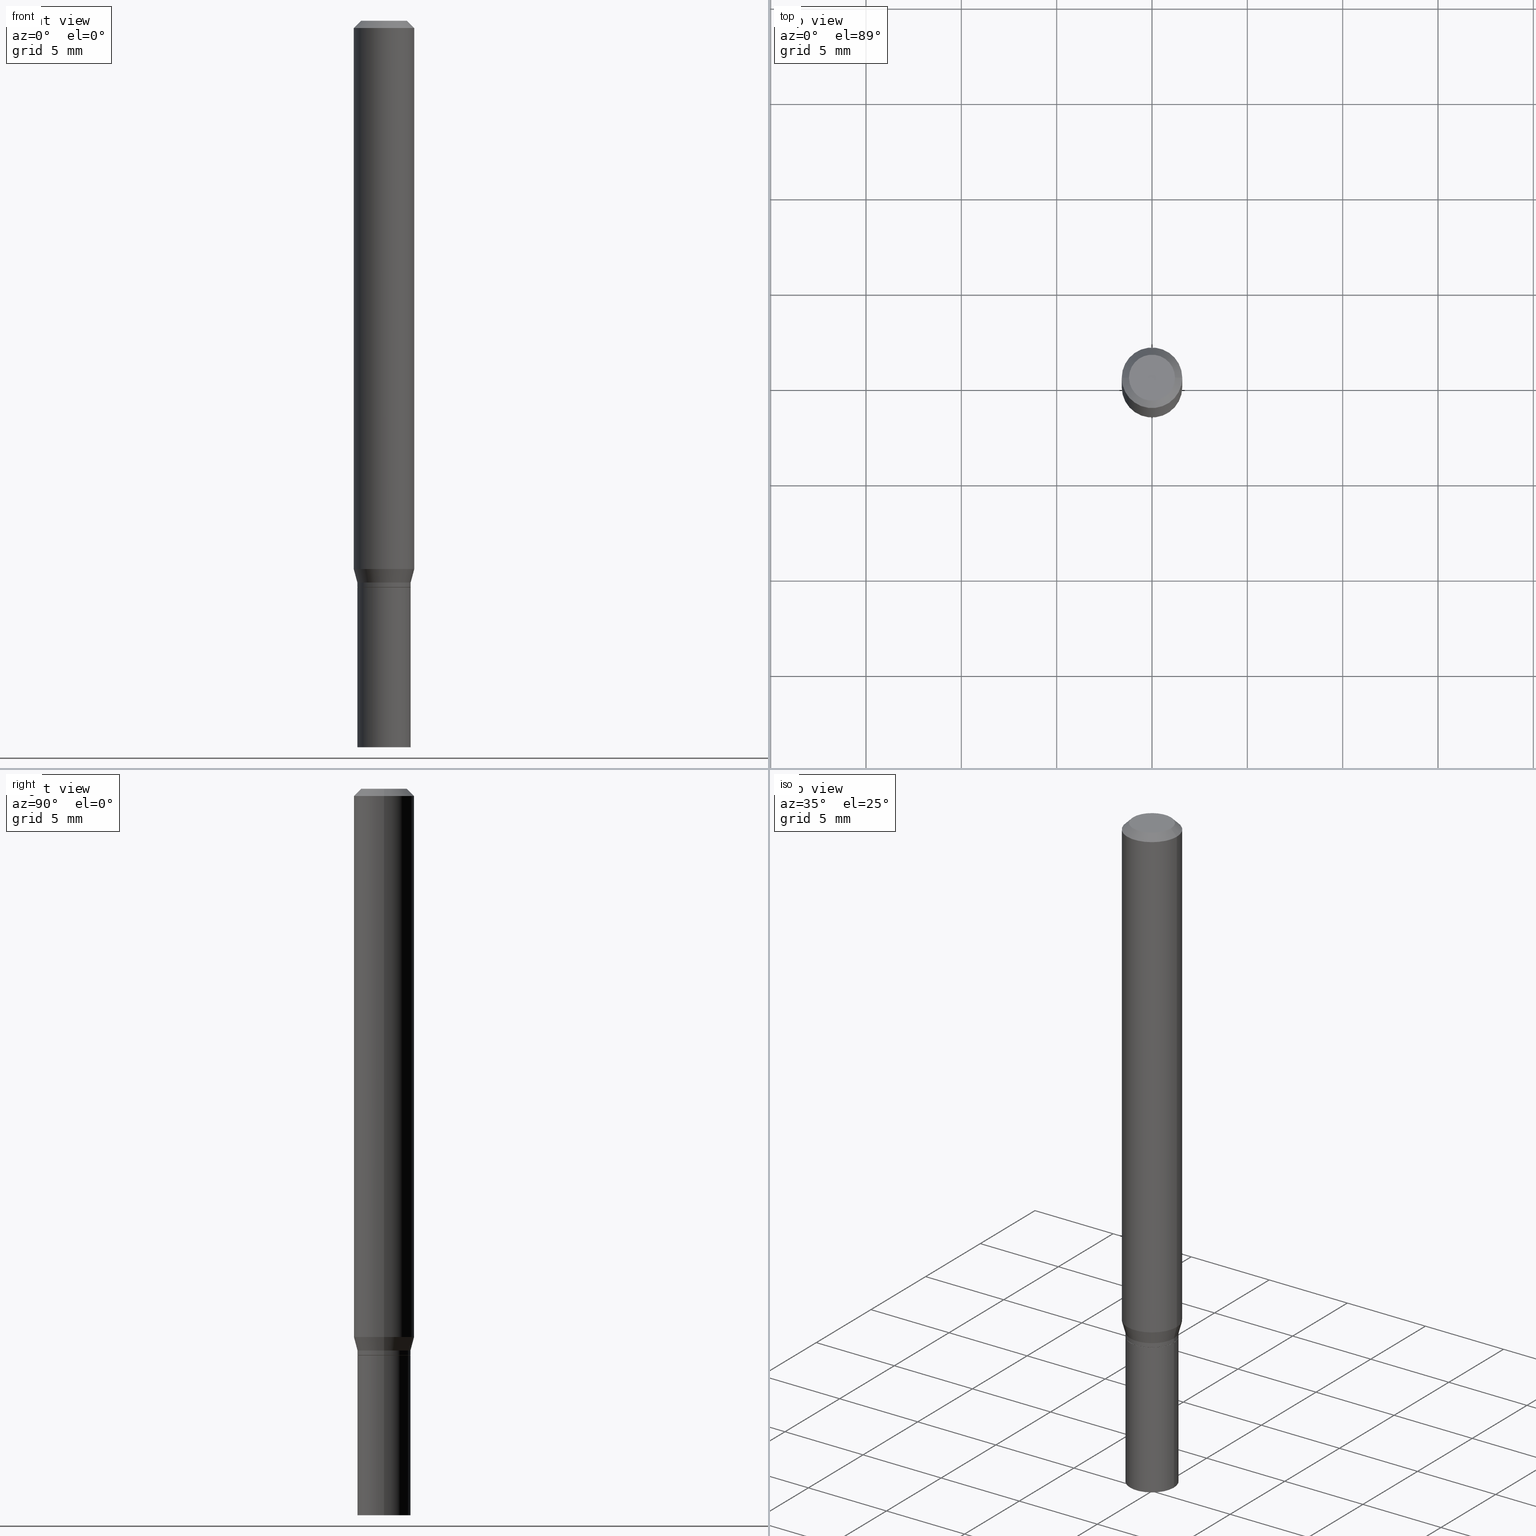
[diagram: canonical four-view strip — front | top / right | iso, engineering-drawing reading convention]
A machine part, canonical four-view strip (front | top / right | iso — engineering-drawing reading convention). The complete STEP part file that produces these views, byte-faithful:
ISO-10303-21;
HEADER;
FILE_DESCRIPTION (( 'STEP AP203' ),
    '1' );
FILE_NAME ('02467.STEP',
    '2024-03-18T20:46:22',
    ( '' ),
    ( '' ),
    'SwSTEP 2.0',
    'SolidWorks 2023',
    '' );
FILE_SCHEMA (( 'CONFIG_CONTROL_DESIGN' ));
ENDSEC;

DATA;
#1 = APPROVAL_DATE_TIME ( #183, #39 ) ;
#2 = CONICAL_SURFACE ( 'NONE', #445, 0.06250000000000000000, 0.7853981633974549403 ) ;
#3 = DIRECTION ( 'NONE',  ( -1.000000000000000000, 6.982962677686265922E-15, -4.876176775795935793E-29 ) ) ;
#4 = CIRCLE ( 'NONE', #71, 0.05500000000000006967 ) ;
#5 = PRODUCT_DEFINITION_FORMATION_WITH_SPECIFIED_SOURCE ( 'ANY', '', #14, .NOT_KNOWN. ) ;
#6 = CARTESIAN_POINT ( 'NONE',  ( -0.04749999999999999362, 3.578768372314206562E-16, -1.989643822619551895E-16 ) ) ;
#7 = DIRECTION ( 'NONE',  ( -2.445468806185136597E-29, 3.491481338843145583E-15, 1.000000000000000000 ) ) ;
#8 = EDGE_CURVE ( 'NONE', #206, #126, #428, .T. ) ;
#9 = PERSON ( 'UNSPECIFIED', 'UNSPECIFIED', 'UNSPECIFIED', ('UNSPECIFIED'), ('UNSPECIFIED'), ('UNSPECIFIED') ) ;
#10 = CALENDAR_DATE ( 2024, 18, 3 ) ;
#11 = DIRECTION ( 'NONE',  ( 1.000000000000000000, -6.982962677686267499E-15, 4.852736867747366768E-29 ) ) ;
#12 = ORIENTED_EDGE ( 'NONE', *, *, #115, .T. ) ;
#13 = CIRCLE ( 'NONE', #421, 0.04749999999999999362 ) ;
#14 = PRODUCT ( '02467', '02467', '', ( #361 ) ) ;
#15 = EDGE_CURVE ( 'NONE', #325, #126, #184, .T. ) ;
#16 = FACE_OUTER_BOUND ( 'NONE', #300, .T. ) ;
#17 = ORIENTED_EDGE ( 'NONE', *, *, #43, .F. ) ;
#18 = DIRECTION ( 'NONE',  ( 1.000000000000000000, -6.982962677686266711E-15, 4.876176775795935793E-29 ) ) ;
#19 = VERTEX_POINT ( 'NONE', #263 ) ;
#20 = FACE_OUTER_BOUND ( 'NONE', #311, .T. ) ;
#21 = ORIENTED_EDGE ( 'NONE', *, *, #292, .F. ) ;
#22 = VECTOR ( 'NONE', #345, 39.37007874015748143 ) ;
#23 = LOCAL_TIME ( 16, 46, 22.00000000000000000, #426 ) ;
#24 = DIRECTION ( 'NONE',  ( -2.445468806185136597E-29, 3.491481338843145583E-15, 1.000000000000000000 ) ) ;
#25 = ADVANCED_FACE ( 'NONE', ( #466 ), #182, .T. ) ;
#26 = ORIENTED_EDGE ( 'NONE', *, *, #264, .T. ) ;
#27 = CC_DESIGN_DATE_AND_TIME_ASSIGNMENT ( #171, #312, ( #456 ) ) ;
#28 = FACE_OUTER_BOUND ( 'NONE', #59, .T. ) ;
#29 = ORIENTED_EDGE ( 'NONE', *, *, #60, .F. ) ;
#30 = APPROVAL_STATUS ( 'not_yet_approved' ) ;
#31 = CARTESIAN_POINT ( 'NONE',  ( 2.861198503236610065E-29, -4.085033166446480067E-15, -1.170000000000000151 ) ) ;
#32 = ADVANCED_FACE ( 'NONE', ( #261 ), #63, .T. ) ;
#33 = AXIS2_PLACEMENT_3D ( 'NONE', #270, #301, #273 ) ;
#34 = CIRCLE ( 'NONE', #242, 0.05450000000000000677 ) ;
#35 = DIRECTION ( 'NONE',  ( -2.445468806185136597E-29, 3.491481338843145583E-15, 1.000000000000000000 ) ) ;
#36 = LINE ( 'NONE', #37, #303 ) ;
#37 = CARTESIAN_POINT ( 'NONE',  ( -0.06250000000000000000, 4.440892098500626162E-16, -3.074334431409316114E-30 ) ) ;
#38 = CARTESIAN_POINT ( 'NONE',  ( -0.05500000000000000028, -4.270329082687544462E-15, -1.170000000000000151 ) ) ;
#39 = APPROVAL ( #152, 'UNSPECIFIED' ) ;
#40 = PERSON_AND_ORGANIZATION ( #9, #224 ) ;
#41 = DIRECTION ( 'NONE',  ( 1.000000000000000000, -6.982962677686270655E-15, 0.000000000000000000 ) ) ;
#42 = VERTEX_POINT ( 'NONE', #394 ) ;
#43 = EDGE_CURVE ( 'NONE', #274, #325, #389, .T. ) ;
#44 = PERSON_AND_ORGANIZATION_ROLE ( 'creator' ) ;
#45 = ORIENTED_EDGE ( 'NONE', *, *, #275, .F. ) ;
#46 = AXIS2_PLACEMENT_3D ( 'NONE', #212, #35, #143 ) ;
#47 = CC_DESIGN_PERSON_AND_ORGANIZATION_ASSIGNMENT ( #465, #288, ( #456 ) ) ;
#48 = DIMENSIONAL_EXPONENTS ( 1.000000000000000000, 0.000000000000000000, 0.000000000000000000, 0.000000000000000000, 0.000000000000000000, 0.000000000000000000, 0.000000000000000000 ) ;
#49 = APPROVAL_ROLE ( '' ) ;
#50 = DIRECTION ( 'NONE',  ( -2.445468806185136597E-29, 3.491481338843145583E-15, 1.000000000000000000 ) ) ;
#51 = ORIENTED_EDGE ( 'NONE', *, *, #180, .T. ) ;
#52 = ADVANCED_FACE ( 'NONE', ( #256 ), #250, .T. ) ;
#53 = CYLINDRICAL_SURFACE ( 'NONE', #199, 0.05500000000000000028 ) ;
#54 = AXIS2_PLACEMENT_3D ( 'NONE', #425, #114, #364 ) ;
#55 = AXIS2_PLACEMENT_3D ( 'NONE', #290, #218, #116 ) ;
#56 = CARTESIAN_POINT ( 'NONE',  ( 0.05450000000000000677, -4.465604632380382045E-15, -1.170000000000000151 ) ) ;
#57 = ORIENTED_EDGE ( 'NONE', *, *, #229, .F. ) ;
#58 = PLANE ( 'NONE',  #90 ) ;
#59 = EDGE_LOOP ( 'NONE', ( #170, #392, #334, #62 ) ) ;
#60 = EDGE_CURVE ( 'NONE', #267, #448, #412, .T. ) ;
#61 = CARTESIAN_POINT ( 'NONE',  ( -0.05500000000000006273, -3.692488921109003115E-15, -1.169499999999999984 ) ) ;
#62 = ORIENTED_EDGE ( 'NONE', *, *, #259, .F. ) ;
#63 = CONICAL_SURFACE ( 'NONE', #54, 0.05500000000000006967, 0.2617993877991484641 ) ;
#64 = CARTESIAN_POINT ( 'NONE',  ( 2.836743815174758520E-29, -4.050118353058049996E-15, -1.160000000000000142 ) ) ;
#65 = ORIENTED_EDGE ( 'NONE', *, *, #8, .T. ) ;
#66 = CARTESIAN_POINT ( 'NONE',  ( -0.05450000000000000677, -3.697787375457225517E-15, -1.170000000000000151 ) ) ;
#67 = ADVANCED_FACE ( 'NONE', ( #397 ), #2, .T. ) ;
#68 = ORIENTED_EDGE ( 'NONE', *, *, #136, .T. ) ;
#69 = ADVANCED_FACE ( 'NONE', ( #327 ), #258, .F. ) ;
#70 = DIRECTION ( 'NONE',  ( 1.000000000000000000, -6.982962677686269077E-15, 0.000000000000000000 ) ) ;
#71 = AXIS2_PLACEMENT_3D ( 'NONE', #64, #266, #194 ) ;
#72 = CONICAL_SURFACE ( 'NONE', #46, 0.05450000000000000677, 0.7853981633974653764 ) ;
#73 = LOCAL_TIME ( 16, 46, 22.00000000000000000, #374 ) ;
#74 = DIRECTION ( 'NONE',  ( -0.7071067811865522357, 2.468850131082306364E-15, -0.7071067811865427988 ) ) ;
#75 = APPROVAL ( #181, 'UNSPECIFIED' ) ;
#76 = CARTESIAN_POINT ( 'NONE',  ( 0.000000000000000000, 0.000000000000000000, 0.000000000000000000 ) ) ;
#77 = CARTESIAN_POINT ( 'NONE',  ( 2.861198503236610065E-29, -4.085033166446480067E-15, -1.170000000000000151 ) ) ;
#78 = CONICAL_SURFACE ( 'NONE', #335, 0.06250000000000000000, 0.7853981633974549403 ) ;
#79 = LOCAL_TIME ( 16, 46, 22.00000000000000000, #148 ) ;
#80 = VERTEX_POINT ( 'NONE', #387 ) ;
#81 = CARTESIAN_POINT ( 'NONE',  ( 3.668203209277705088E-31, -5.237222008264718399E-17, -0.01499999999999999944 ) ) ;
#82 = EDGE_CURVE ( 'NONE', #187, #380, #145, .T. ) ;
#83 = CALENDAR_DATE ( 2024, 18, 3 ) ;
#84 = APPROVAL_ROLE ( '' ) ;
#85 = VECTOR ( 'NONE', #156, 39.37007874015748143 ) ;
#86 = ORIENTED_EDGE ( 'NONE', *, *, #424, .F. ) ;
#87 = DIRECTION ( 'NONE',  ( 2.445468806185136597E-29, -3.491481338843145583E-15, -1.000000000000000000 ) ) ;
#88 = CARTESIAN_POINT ( 'NONE',  ( -0.05500000000000000028, 3.907985046680551042E-16, -2.705414299640198362E-30 ) ) ;
#89 = CARTESIAN_POINT ( 'NONE',  ( -0.05500000000000000028, -4.270329082687544462E-15, -1.500000000000000222 ) ) ;
#90 = AXIS2_PLACEMENT_3D ( 'NONE', #196, #299, #163 ) ;
#91 =( GEOMETRIC_REPRESENTATION_CONTEXT ( 3 ) GLOBAL_UNCERTAINTY_ASSIGNED_CONTEXT ( ( #213 ) ) GLOBAL_UNIT_ASSIGNED_CONTEXT ( ( #293, #223, #110 ) ) REPRESENTATION_CONTEXT ( 'NONE', 'WORKASPACE' ) );
#92 = ORIENTED_EDGE ( 'NONE', *, *, #102, .F. ) ;
#93 = CARTESIAN_POINT ( 'NONE',  ( 0.06250000000000000000, -4.388825627286632416E-15, -1.132009618943233820 ) ) ;
#94 = EDGE_LOOP ( 'NONE', ( #12, #166, #204, #92 ) ) ;
#95 = ADVANCED_FACE ( 'NONE', ( #20 ), #158, .F. ) ;
#96 = CARTESIAN_POINT ( 'NONE',  ( 3.668203209277704895E-29, -5.237222008264718177E-15, -1.500000000000000222 ) ) ;
#97 = ORIENTED_EDGE ( 'NONE', *, *, #306, .T. ) ;
#98 = CARTESIAN_POINT ( 'NONE',  ( -0.06250000000000000000, -3.508301250081178130E-15, -1.132009618943233820 ) ) ;
#99 = EDGE_LOOP ( 'NONE', ( #168, #442, #153, #197 ) ) ;
#100 = AXIS2_PLACEMENT_3D ( 'NONE', #348, #351, #101 ) ;
#101 = DIRECTION ( 'NONE',  ( 1.000000000000000000, -6.982962677686265922E-15, 4.876176775795935793E-29 ) ) ;
#102 = EDGE_CURVE ( 'NONE', #126, #187, #134, .T. ) ;
#103 = ORIENTED_EDGE ( 'NONE', *, *, #222, .F. ) ;
#104 = LINE ( 'NONE', #310, #403 ) ;
#105 = DIRECTION ( 'NONE',  ( -2.445468806185136597E-29, 3.491481338843145583E-15, 1.000000000000000000 ) ) ;
#106 = VECTOR ( 'NONE', #74, 39.37007874015748143 ) ;
#107 = LINE ( 'NONE', #66, #280 ) ;
#108 = ADVANCED_FACE ( 'NONE', ( #276 ), #53, .T. ) ;
#109 = DIRECTION ( 'NONE',  ( -2.445468806185136597E-29, 3.491481338843145583E-15, 1.000000000000000000 ) ) ;
#110 =( NAMED_UNIT ( * ) SI_UNIT ( $, .STERADIAN. ) SOLID_ANGLE_UNIT ( ) );
#111 = DIRECTION ( 'NONE',  ( -1.000000000000000000, 6.982962677686266711E-15, 0.000000000000000000 ) ) ;
#112 = COORDINATED_UNIVERSAL_TIME_OFFSET ( 5, 0, .BEHIND. ) ;
#113 = CIRCLE ( 'NONE', #321, 0.05500000000000000028 ) ;
#114 = DIRECTION ( 'NONE',  ( -2.445468806185136597E-29, 3.491481338843145583E-15, 1.000000000000000000 ) ) ;
#115 = EDGE_CURVE ( 'NONE', #126, #206, #173, .T. ) ;
#116 = DIRECTION ( 'NONE',  ( 1.000000000000000000, -6.982962677686266711E-15, 4.876176775795935793E-29 ) ) ;
#117 = DIRECTION ( 'NONE',  ( 1.000000000000000000, -6.982962677686266711E-15, 0.000000000000000000 ) ) ;
#118 = PERSON_AND_ORGANIZATION_ROLE ( 'design_owner' ) ;
#119 = CARTESIAN_POINT ( 'NONE',  ( 0.000000000000000000, 0.000000000000000000, 0.000000000000000000 ) ) ;
#120 = CLOSED_SHELL ( 'NONE', ( #353, #177, #108, #69 ) ) ;
#121 = DIRECTION ( 'NONE',  ( -2.445468806185136597E-29, 3.491481338843145583E-15, 1.000000000000000000 ) ) ;
#122 = CARTESIAN_POINT ( 'NONE',  ( 3.668203209277704895E-29, -5.237222008264718177E-15, -1.500000000000000222 ) ) ;
#123 = MANIFOLD_SOLID_BREP ( 'Body-Move/Copy2[2]', #139 ) ;
#124 = CC_DESIGN_PERSON_AND_ORGANIZATION_ASSIGNMENT ( #322, #268, ( #5 ) ) ;
#125 = DIRECTION ( 'NONE',  ( -2.445468806185136597E-29, 3.491481338843145583E-15, 1.000000000000000000 ) ) ;
#126 = VERTEX_POINT ( 'NONE', #93 ) ;
#127 = APPROVAL_DATE_TIME ( #294, #75 ) ;
#128 = CARTESIAN_POINT ( 'NONE',  ( 3.668203209277705088E-31, -5.237222008264718399E-17, -0.01499999999999999944 ) ) ;
#129 = AXIS2_PLACEMENT_3D ( 'NONE', #151, #50, #291 ) ;
#130 = CC_DESIGN_APPROVAL ( #39, ( #226 ) ) ;
#131 = ORIENTED_EDGE ( 'NONE', *, *, #424, .T. ) ;
#132 = DIRECTION ( 'NONE',  ( 1.000000000000000000, -6.982962677686266711E-15, 0.000000000000000000 ) ) ;
#133 = ORIENTED_EDGE ( 'NONE', *, *, #359, .T. ) ;
#134 = LINE ( 'NONE', #161, #437 ) ;
#135 = EDGE_LOOP ( 'NONE', ( #51, #97 ) ) ;
#136 = EDGE_CURVE ( 'NONE', #378, #42, #337, .T. ) ;
#137 = FACE_OUTER_BOUND ( 'NONE', #401, .T. ) ;
#138 = ORIENTED_EDGE ( 'NONE', *, *, #215, .T. ) ;
#139 = CLOSED_SHELL ( 'NONE', ( #25, #340, #67, #396, #52, #32, #440, #210, #418, #95, #160, #283 ) ) ;
#140 = APPROVAL_ROLE ( '' ) ;
#141 = DIRECTION ( 'NONE',  ( -1.000000000000000000, 6.982962677686265922E-15, -4.876176775795935793E-29 ) ) ;
#142 = CC_DESIGN_PERSON_AND_ORGANIZATION_ASSIGNMENT ( #40, #44, ( #226 ) ) ;
#143 = DIRECTION ( 'NONE',  ( 1.000000000000000000, -6.982962677686269077E-15, 0.000000000000000000 ) ) ;
#144 = CYLINDRICAL_SURFACE ( 'NONE', #463, 0.05500000000000000028 ) ;
#145 = CIRCLE ( 'NONE', #185, 0.06250000000000000000 ) ;
#146 = DIRECTION ( 'NONE',  ( -2.445468806185136597E-29, 3.491481338843145583E-15, 1.000000000000000000 ) ) ;
#147 = DIRECTION ( 'NONE',  ( -2.445468806185136597E-29, 3.491481338843145583E-15, 1.000000000000000000 ) ) ;
#148 = COORDINATED_UNIVERSAL_TIME_OFFSET ( 5, 0, .BEHIND. ) ;
#149 = CIRCLE ( 'NONE', #209, 0.06250000000000000000 ) ;
#150 = AXIS2_PLACEMENT_3D ( 'NONE', #381, #109, #352 ) ;
#151 = CARTESIAN_POINT ( 'NONE',  ( 2.836743815174758520E-29, -4.050118353058049996E-15, -1.160000000000000142 ) ) ;
#152 = APPROVAL_STATUS ( 'not_yet_approved' ) ;
#153 = ORIENTED_EDGE ( 'NONE', *, *, #320, .F. ) ;
#154 = CYLINDRICAL_SURFACE ( 'NONE', #55, 0.06250000000000000000 ) ;
#155 = DIRECTION ( 'NONE',  ( 0.2588190451025197403, 1.565188264969634787E-15, 0.9659258262890685343 ) ) ;
#156 = DIRECTION ( 'NONE',  ( -2.445468806185136877E-29, 3.491481338843145188E-15, 1.000000000000000000 ) ) ;
#157 = AXIS2_PLACEMENT_3D ( 'NONE', #216, #435, #433 ) ;
#158 = PLANE ( 'NONE',  #319 ) ;
#159 = ORIENTED_EDGE ( 'NONE', *, *, #82, .T. ) ;
#160 = ADVANCED_FACE ( 'NONE', ( #447 ), #241, .T. ) ;
#161 = CARTESIAN_POINT ( 'NONE',  ( 0.06250000000000000000, -4.364351673553916694E-16, 3.047610484872459871E-30 ) ) ;
#162 = ORIENTED_EDGE ( 'NONE', *, *, #102, .T. ) ;
#163 = DIRECTION ( 'NONE',  ( 1.000000000000000000, -6.982962677686265922E-15, 4.876176775795935793E-29 ) ) ;
#164 = AXIS2_PLACEMENT_3D ( 'NONE', #377, #24, #441 ) ;
#165 = LOCAL_TIME ( 16, 46, 22.00000000000000000, #188 ) ;
#166 = ORIENTED_EDGE ( 'NONE', *, *, #292, .T. ) ;
#167 = DIRECTION ( 'NONE',  ( 0.7071067811865522357, -7.319954787623271823E-15, -0.7071067811865427988 ) ) ;
#168 = ORIENTED_EDGE ( 'NONE', *, *, #324, .T. ) ;
#169 = FACE_OUTER_BOUND ( 'NONE', #195, .T. ) ;
#170 = ORIENTED_EDGE ( 'NONE', *, *, #222, .T. ) ;
#171 = DATE_AND_TIME ( #245, #23 ) ;
#172 = LINE ( 'NONE', #313, #383 ) ;
#173 = CIRCLE ( 'NONE', #33, 0.06250000000000000000 ) ;
#174 = CIRCLE ( 'NONE', #150, 0.05500000000000006273 ) ;
#175 = CARTESIAN_POINT ( 'NONE',  ( 0.05500000000000006967, -4.434181300330794981E-15, -1.160000000000000142 ) ) ;
#176 = LINE ( 'NONE', #178, #106 ) ;
#177 = ADVANCED_FACE ( 'NONE', ( #16 ), #58, .F. ) ;
#178 = CARTESIAN_POINT ( 'NONE',  ( -0.06250000000000000000, 3.840629472727444916E-16, -0.01499999999999999944 ) ) ;
#179 = AXIS2_PLACEMENT_3D ( 'NONE', #287, #121, #11 ) ;
#180 = EDGE_CURVE ( 'NONE', #19, #464, #462, .T. ) ;
#181 = APPROVAL_STATUS ( 'not_yet_approved' ) ;
#182 = CYLINDRICAL_SURFACE ( 'NONE', #191, 0.05500000000000006273 ) ;
#183 = DATE_AND_TIME ( #83, #251 ) ;
#184 = LINE ( 'NONE', #427, #279 ) ;
#185 = AXIS2_PLACEMENT_3D ( 'NONE', #360, #432, #117 ) ;
#186 = CALENDAR_DATE ( 2024, 18, 3 ) ;
#187 = VERTEX_POINT ( 'NONE', #443 ) ;
#188 = COORDINATED_UNIVERSAL_TIME_OFFSET ( 5, 0, .BEHIND. ) ;
#189 = CARTESIAN_POINT ( 'NONE',  ( 2.836743815174758520E-29, -4.050118353058049996E-15, -1.160000000000000142 ) ) ;
#190 = EDGE_CURVE ( 'NONE', #380, #187, #149, .T. ) ;
#191 = AXIS2_PLACEMENT_3D ( 'NONE', #119, #147, #217 ) ;
#192 = DIRECTION ( 'NONE',  ( -2.445468806185136597E-29, 3.491481338843145583E-15, 1.000000000000000000 ) ) ;
#193 = EDGE_CURVE ( 'NONE', #448, #267, #13, .T. ) ;
#194 = DIRECTION ( 'NONE',  ( 1.000000000000000000, -6.982962677686270655E-15, 0.000000000000000000 ) ) ;
#195 = EDGE_LOOP ( 'NONE', ( #414, #201 ) ) ;
#196 = CARTESIAN_POINT ( 'NONE',  ( 3.576687321579069994E-29, -5.368277968210015545E-15, -1.500000000000000222 ) ) ;
#197 = ORIENTED_EDGE ( 'NONE', *, *, #136, .F. ) ;
#198 = LINE ( 'NONE', #343, #336 ) ;
#199 = AXIS2_PLACEMENT_3D ( 'NONE', #240, #400, #18 ) ;
#200 = AXIS2_PLACEMENT_3D ( 'NONE', #282, #207, #246 ) ;
#201 = ORIENTED_EDGE ( 'NONE', *, *, #60, .T. ) ;
#202 = APPROVAL_DATE_TIME ( #406, #243 ) ;
#203 = DIRECTION ( 'NONE',  ( -2.445468806185136597E-29, 3.491481338843145583E-15, 1.000000000000000000 ) ) ;
#204 = ORIENTED_EDGE ( 'NONE', *, *, #82, .F. ) ;
#205 = CARTESIAN_POINT ( 'NONE',  ( -0.06250000000000000000, -1.558292130156881494E-15, -0.01499999999999999944 ) ) ;
#206 = VERTEX_POINT ( 'NONE', #98 ) ;
#207 = DIRECTION ( 'NONE',  ( -2.445468806185136597E-29, 3.491481338843145583E-15, 1.000000000000000000 ) ) ;
#208 = CIRCLE ( 'NONE', #221, 0.05500000000000000028 ) ;
#209 = AXIS2_PLACEMENT_3D ( 'NONE', #128, #125, #132 ) ;
#210 = ADVANCED_FACE ( 'NONE', ( #230 ), #78, .T. ) ;
#211 = DIRECTION ( 'NONE',  ( 1.000000000000000000, -6.982962677686271444E-15, 0.000000000000000000 ) ) ;
#212 = CARTESIAN_POINT ( 'NONE',  ( 2.861198503236610065E-29, -4.085033166446480067E-15, -1.170000000000000151 ) ) ;
#213 = UNCERTAINTY_MEASURE_WITH_UNIT (LENGTH_MEASURE( 1.000000000000000082E-05 ), #293, 'distance_accuracy_value', 'NONE');
#214 = DIRECTION ( 'NONE',  ( -2.445468806185136597E-29, 3.491481338843145583E-15, 1.000000000000000000 ) ) ;
#215 = EDGE_CURVE ( 'NONE', #325, #274, #4, .T. ) ;
#216 = CARTESIAN_POINT ( 'NONE',  ( 0.000000000000000000, 0.000000000000000000, 0.000000000000000000 ) ) ;
#217 = DIRECTION ( 'NONE',  ( 1.000000000000000000, -6.982962677686265922E-15, 4.876176775795935793E-29 ) ) ;
#218 = DIRECTION ( 'NONE',  ( -2.445468806185136597E-29, 3.491481338843145583E-15, 1.000000000000000000 ) ) ;
#219 = CARTESIAN_POINT ( 'NONE',  ( 3.840629472727732850E-16, 0.05499999999999591327, -1.170000000000000151 ) ) ;
#220 = ORIENTED_EDGE ( 'NONE', *, *, #264, .F. ) ;
#221 = AXIS2_PLACEMENT_3D ( 'NONE', #96, #203, #304 ) ;
#222 = EDGE_CURVE ( 'NONE', #80, #227, #208, .T. ) ;
#223 =( NAMED_UNIT ( * ) PLANE_ANGLE_UNIT ( ) SI_UNIT ( $, .RADIAN. ) );
#224 = ORGANIZATION ( 'UNSPECIFIED', 'UNSPECIFIED', '' ) ;
#225 = ORIENTED_EDGE ( 'NONE', *, *, #193, .F. ) ;
#226 = PRODUCT_DEFINITION ( 'UNKNOWN', '', #5, #234 ) ;
#227 = VERTEX_POINT ( 'NONE', #89 ) ;
#228 = CARTESIAN_POINT ( 'NONE',  ( 2.861198503236610065E-29, -4.085033166446480067E-15, -1.170000000000000151 ) ) ;
#229 = EDGE_CURVE ( 'NONE', #227, #464, #237, .T. ) ;
#230 = FACE_OUTER_BOUND ( 'NONE', #362, .T. ) ;
#231 = CIRCLE ( 'NONE', #429, 0.05500000000000006273 ) ;
#232 = EDGE_LOOP ( 'NONE', ( #138, #436, #451, #458 ) ) ;
#233 = SHAPE_DEFINITION_REPRESENTATION ( #305, #417 ) ;
#234 = DESIGN_CONTEXT ( 'detailed design', #453, 'design' ) ;
#235 = DIRECTION ( 'NONE',  ( -2.445468806185136877E-29, 3.491481338843145188E-15, 1.000000000000000000 ) ) ;
#236 = VERTEX_POINT ( 'NONE', #61 ) ;
#237 = LINE ( 'NONE', #88, #22 ) ;
#238 = ORIENTED_EDGE ( 'NONE', *, *, #215, .F. ) ;
#239 = PERSON_AND_ORGANIZATION ( #9, #224 ) ;
#240 = CARTESIAN_POINT ( 'NONE',  ( 0.000000000000000000, 0.000000000000000000, 0.000000000000000000 ) ) ;
#241 = CONICAL_SURFACE ( 'NONE', #355, 0.05450000000000000677, 0.7853981633974653764 ) ;
#242 = AXIS2_PLACEMENT_3D ( 'NONE', #31, #379, #70 ) ;
#243 = APPROVAL ( #30, 'UNSPECIFIED' ) ;
#244 = ORIENTED_EDGE ( 'NONE', *, *, #369, .F. ) ;
#245 = CALENDAR_DATE ( 2024, 18, 3 ) ;
#246 = DIRECTION ( 'NONE',  ( 1.000000000000000000, -6.982962677686262766E-15, 0.000000000000000000 ) ) ;
#247 = ORIENTED_EDGE ( 'NONE', *, *, #320, .T. ) ;
#248 = DIRECTION ( 'NONE',  ( 1.000000000000000000, -6.982962677686262766E-15, 0.000000000000000000 ) ) ;
#249 = CARTESIAN_POINT ( 'NONE',  ( 0.05500000000000006273, -3.840629472727450832E-16, 2.681897226687767629E-30 ) ) ;
#250 = CONICAL_SURFACE ( 'NONE', #455, 0.05500000000000006967, 0.2617993877991484641 ) ;
#251 = LOCAL_TIME ( 16, 46, 22.00000000000000000, #112 ) ;
#252 = FACE_OUTER_BOUND ( 'NONE', #94, .T. ) ;
#253 = PLANE ( 'NONE',  #297 ) ;
#254 = DIRECTION ( 'NONE',  ( 2.438088387897960049E-29, -3.491481338843145188E-15, -1.000000000000000000 ) ) ;
#255 = PERSON_AND_ORGANIZATION ( #9, #224 ) ;
#256 = FACE_OUTER_BOUND ( 'NONE', #232, .T. ) ;
#257 =( LENGTH_UNIT ( ) NAMED_UNIT ( * ) SI_UNIT ( $, .METRE. ) );
#258 = PLANE ( 'NONE',  #328 ) ;
#259 = EDGE_CURVE ( 'NONE', #80, #19, #338, .T. ) ;
#260 = PERSON_AND_ORGANIZATION ( #9, #224 ) ;
#261 = FACE_OUTER_BOUND ( 'NONE', #454, .T. ) ;
#262 = CC_DESIGN_APPROVAL ( #243, ( #456 ) ) ;
#263 = CARTESIAN_POINT ( 'NONE',  ( 0.05500000000000000028, -4.469096113719225052E-15, -1.170000000000000151 ) ) ;
#264 = EDGE_CURVE ( 'NONE', #267, #187, #198, .T. ) ;
#265 = DIRECTION ( 'NONE',  ( 1.000000000000000000, -6.982962677686265922E-15, 4.876176775795935793E-29 ) ) ;
#266 = DIRECTION ( 'NONE',  ( -2.445468806185136597E-29, 3.491481338843145583E-15, 1.000000000000000000 ) ) ;
#267 = VERTEX_POINT ( 'NONE', #298 ) ;
#268 = PERSON_AND_ORGANIZATION_ROLE ( 'creator' ) ;
#269 = CC_DESIGN_SECURITY_CLASSIFICATION ( #456, ( #5 ) ) ;
#270 = CARTESIAN_POINT ( 'NONE',  ( 2.768294211427201206E-29, -3.952390459931240746E-15, -1.132009618943233820 ) ) ;
#271 = APPROVAL_PERSON_ORGANIZATION ( #255, #75, #49 ) ;
#272 = ORIENTED_EDGE ( 'NONE', *, *, #306, .F. ) ;
#273 = DIRECTION ( 'NONE',  ( 1.000000000000000000, -6.982962677686270655E-15, 0.000000000000000000 ) ) ;
#274 = VERTEX_POINT ( 'NONE', #439 ) ;
#275 = EDGE_CURVE ( 'NONE', #227, #80, #113, .T. ) ;
#276 = FACE_OUTER_BOUND ( 'NONE', #281, .T. ) ;
#277 = ORIENTED_EDGE ( 'NONE', *, *, #384, .F. ) ;
#278 = DIRECTION ( 'NONE',  ( -2.445468806185136597E-29, 3.491481338843145583E-15, 1.000000000000000000 ) ) ;
#279 = VECTOR ( 'NONE', #155, 39.37007874015748143 ) ;
#280 = VECTOR ( 'NONE', #460, 39.37007874015748143 ) ;
#281 = EDGE_LOOP ( 'NONE', ( #57, #347, #342, #272 ) ) ;
#282 = CARTESIAN_POINT ( 'NONE',  ( 2.861198503236610065E-29, -4.085033166446480067E-15, -1.170000000000000151 ) ) ;
#283 = ADVANCED_FACE ( 'NONE', ( #413 ), #315, .T. ) ;
#284 = DIRECTION ( 'NONE',  ( -2.445468806185136877E-29, 3.491481338843145188E-15, 1.000000000000000000 ) ) ;
#285 = DIRECTION ( 'NONE',  ( -2.445468806185136597E-29, 3.491481338843145583E-15, 1.000000000000000000 ) ) ;
#286 = DIRECTION ( 'NONE',  ( 1.000000000000000000, -6.982962677686266711E-15, 4.876176775795935793E-29 ) ) ;
#287 = CARTESIAN_POINT ( 'NONE',  ( 4.865611903635008365E-45, -6.946804277620623666E-31, -1.989643822619527736E-16 ) ) ;
#288 = PERSON_AND_ORGANIZATION_ROLE ( 'classification_officer' ) ;
#289 = ORIENTED_EDGE ( 'NONE', *, *, #324, .F. ) ;
#290 = CARTESIAN_POINT ( 'NONE',  ( 0.000000000000000000, 0.000000000000000000, 0.000000000000000000 ) ) ;
#291 = DIRECTION ( 'NONE',  ( 1.000000000000000000, -6.982962677686270655E-15, 0.000000000000000000 ) ) ;
#292 = EDGE_CURVE ( 'NONE', #206, #380, #36, .T. ) ;
#293 =( CONVERSION_BASED_UNIT ( 'INCH', #391 ) LENGTH_UNIT ( ) NAMED_UNIT ( #48 ) );
#294 = DATE_AND_TIME ( #10, #165 ) ;
#295 = ORIENTED_EDGE ( 'NONE', *, *, #190, .F. ) ;
#296 = EDGE_CURVE ( 'NONE', #42, #325, #459, .T. ) ;
#297 = AXIS2_PLACEMENT_3D ( 'NONE', #457, #386, #141 ) ;
#298 = CARTESIAN_POINT ( 'NONE',  ( 0.04749999999999999362, -4.035134999187581581E-16, -1.989643822619502098E-16 ) ) ;
#299 = DIRECTION ( 'NONE',  ( -2.438088387897960049E-29, 3.491481338843145188E-15, 1.000000000000000000 ) ) ;
#300 = EDGE_LOOP ( 'NONE', ( #103, #45 ) ) ;
#301 = DIRECTION ( 'NONE',  ( -2.445468806185136597E-29, 3.491481338843145583E-15, 1.000000000000000000 ) ) ;
#302 = ORIENTED_EDGE ( 'NONE', *, *, #15, .T. ) ;
#303 = VECTOR ( 'NONE', #416, 39.37007874015748143 ) ;
#304 = DIRECTION ( 'NONE',  ( 1.000000000000000000, -6.982962677686262766E-15, 0.000000000000000000 ) ) ;
#305 = PRODUCT_DEFINITION_SHAPE ( 'NONE', 'NONE',  #226 ) ;
#306 = EDGE_CURVE ( 'NONE', #464, #19, #438, .T. ) ;
#307 = ORIENTED_EDGE ( 'NONE', *, *, #388, .F. ) ;
#308 = CARTESIAN_POINT ( 'NONE',  ( 3.668203209277705088E-31, -5.237222008264718399E-17, -0.01499999999999999944 ) ) ;
#309 = EDGE_LOOP ( 'NONE', ( #247, #408, #238, #344 ) ) ;
#310 = CARTESIAN_POINT ( 'NONE',  ( -0.05500000000000006967, -3.659319848389993758E-15, -1.160000000000000142 ) ) ;
#311 = EDGE_LOOP ( 'NONE', ( #289, #86 ) ) ;
#312 = DATE_TIME_ROLE ( 'classification_date' ) ;
#313 = CARTESIAN_POINT ( 'NONE',  ( -0.05500000000000006273, 3.907985046680555479E-16, -2.705414299640201165E-30 ) ) ;
#314 = APPROVAL_PERSON_ORGANIZATION ( #239, #243, #140 ) ;
#315 = CYLINDRICAL_SURFACE ( 'NONE', #100, 0.05500000000000006273 ) ;
#316 = CARTESIAN_POINT ( 'NONE',  ( 0.05450000000000000677, -4.465604632380382045E-15, -1.170000000000000151 ) ) ;
#317 = ORIENTED_EDGE ( 'NONE', *, *, #8, .F. ) ;
#318 = DIRECTION ( 'NONE',  ( -0.2588190451025197403, 5.211531920934539998E-15, 0.9659258262890685343 ) ) ;
#319 = AXIS2_PLACEMENT_3D ( 'NONE', #365, #367, #265 ) ;
#320 = EDGE_CURVE ( 'NONE', #42, #236, #174, .T. ) ;
#321 = AXIS2_PLACEMENT_3D ( 'NONE', #122, #105, #248 ) ;
#322 = PERSON_AND_ORGANIZATION ( #9, #224 ) ;
#323 = PERSON_AND_ORGANIZATION ( #9, #224 ) ;
#324 = EDGE_CURVE ( 'NONE', #378, #411, #34, .T. ) ;
#325 = VERTEX_POINT ( 'NONE', #175 ) ;
#326 = DATE_AND_TIME ( #186, #79 ) ;
#327 = FACE_OUTER_BOUND ( 'NONE', #135, .T. ) ;
#328 = AXIS2_PLACEMENT_3D ( 'NONE', #219, #254, #3 ) ;
#329 = AXIS2_PLACEMENT_3D ( 'NONE', #461, #146, #286 ) ;
#330 = DATE_TIME_ROLE ( 'creation_date' ) ;
#331 = CARTESIAN_POINT ( 'NONE',  ( 2.768294211427201206E-29, -3.952390459931240746E-15, -1.132009618943233820 ) ) ;
#332 = CC_DESIGN_PERSON_AND_ORGANIZATION_ASSIGNMENT ( #393, #118, ( #14 ) ) ;
#333 = APPLICATION_PROTOCOL_DEFINITION ( 'international standard', 'config_control_design', 1994, #453 ) ;
#334 = ORIENTED_EDGE ( 'NONE', *, *, #180, .F. ) ;
#335 = AXIS2_PLACEMENT_3D ( 'NONE', #308, #341, #407 ) ;
#336 = VECTOR ( 'NONE', #167, 39.37007874015748143 ) ;
#337 = LINE ( 'NONE', #56, #363 ) ;
#338 = LINE ( 'NONE', #450, #85 ) ;
#339 = ORIENTED_EDGE ( 'NONE', *, *, #43, .T. ) ;
#340 = ADVANCED_FACE ( 'NONE', ( #382 ), #72, .T. ) ;
#341 = DIRECTION ( 'NONE',  ( 2.445468806185136597E-29, -3.491481338843145583E-15, -1.000000000000000000 ) ) ;
#342 = ORIENTED_EDGE ( 'NONE', *, *, #259, .T. ) ;
#343 = CARTESIAN_POINT ( 'NONE',  ( 0.06250000000000000000, -4.811533449433679005E-16, -0.01499999999999999944 ) ) ;
#344 = ORIENTED_EDGE ( 'NONE', *, *, #296, .F. ) ;
#345 = DIRECTION ( 'NONE',  ( -2.445468806185136877E-29, 3.491481338843145188E-15, 1.000000000000000000 ) ) ;
#346 = EDGE_CURVE ( 'NONE', #448, #380, #176, .T. ) ;
#347 = ORIENTED_EDGE ( 'NONE', *, *, #275, .T. ) ;
#348 = CARTESIAN_POINT ( 'NONE',  ( 0.000000000000000000, 0.000000000000000000, 0.000000000000000000 ) ) ;
#349 = DIRECTION ( 'NONE',  ( 1.000000000000000000, -6.982962677686266711E-15, 4.876176775795935793E-29 ) ) ;
#350 = ORIENTED_EDGE ( 'NONE', *, *, #346, .T. ) ;
#351 = DIRECTION ( 'NONE',  ( -2.445468806185136597E-29, 3.491481338843145583E-15, 1.000000000000000000 ) ) ;
#352 = DIRECTION ( 'NONE',  ( 1.000000000000000000, -6.982962677686271444E-15, 0.000000000000000000 ) ) ;
#353 = ADVANCED_FACE ( 'NONE', ( #28 ), #144, .T. ) ;
#354 = SECURITY_CLASSIFICATION_LEVEL ( 'unclassified' ) ;
#355 = AXIS2_PLACEMENT_3D ( 'NONE', #228, #192, #370 ) ;
#356 = EDGE_LOOP ( 'NONE', ( #277, #131, #68, #434 ) ) ;
#357 = CIRCLE ( 'NONE', #395, 0.05450000000000000677 ) ;
#358 = DIRECTION ( 'NONE',  ( 1.000000000000000000, -6.982962677686270655E-15, 0.000000000000000000 ) ) ;
#359 = EDGE_CURVE ( 'NONE', #236, #42, #231, .T. ) ;
#360 = CARTESIAN_POINT ( 'NONE',  ( 3.668203209277705088E-31, -5.237222008264718399E-17, -0.01499999999999999944 ) ) ;
#361 = MECHANICAL_CONTEXT ( 'NONE', #409, 'mechanical' ) ;
#362 = EDGE_LOOP ( 'NONE', ( #220, #225, #350, #371 ) ) ;
#363 = VECTOR ( 'NONE', #399, 39.37007874015748143 ) ;
#364 = DIRECTION ( 'NONE',  ( 1.000000000000000000, -6.982962677686270655E-15, 0.000000000000000000 ) ) ;
#365 = CARTESIAN_POINT ( 'NONE',  ( 2.861198503236610065E-29, -4.085033166446480067E-15, -1.170000000000000151 ) ) ;
#366 = VECTOR ( 'NONE', #284, 39.37007874015748143 ) ;
#367 = DIRECTION ( 'NONE',  ( -2.438088387897960049E-29, 3.491481338843145188E-15, 1.000000000000000000 ) ) ;
#368 = EDGE_LOOP ( 'NONE', ( #29, #26, #159, #405 ) ) ;
#369 = EDGE_CURVE ( 'NONE', #274, #206, #104, .T. ) ;
#370 = DIRECTION ( 'NONE',  ( 1.000000000000000000, -6.982962677686269077E-15, 0.000000000000000000 ) ) ;
#371 = ORIENTED_EDGE ( 'NONE', *, *, #190, .T. ) ;
#372 = DIRECTION ( 'NONE',  ( 1.000000000000000000, -6.982962677686267499E-15, 4.852736867747366768E-29 ) ) ;
#373 = ORIENTED_EDGE ( 'NONE', *, *, #296, .T. ) ;
#374 = COORDINATED_UNIVERSAL_TIME_OFFSET ( 5, 0, .BEHIND. ) ;
#375 = AXIS2_PLACEMENT_3D ( 'NONE', #331, #7, #41 ) ;
#376 = APPROVAL_PERSON_ORGANIZATION ( #260, #39, #84 ) ;
#377 = CARTESIAN_POINT ( 'NONE',  ( 2.861198503236610065E-29, -4.085033166446480067E-15, -1.170000000000000151 ) ) ;
#378 = VERTEX_POINT ( 'NONE', #316 ) ;
#379 = DIRECTION ( 'NONE',  ( -2.445468806185136597E-29, 3.491481338843145583E-15, 1.000000000000000000 ) ) ;
#380 = VERTEX_POINT ( 'NONE', #205 ) ;
#381 = CARTESIAN_POINT ( 'NONE',  ( 2.859975768833517263E-29, -4.083287425777059353E-15, -1.169499999999999984 ) ) ;
#382 = FACE_OUTER_BOUND ( 'NONE', #99, .T. ) ;
#383 = VECTOR ( 'NONE', #415, 39.37007874015748143 ) ;
#384 = EDGE_CURVE ( 'NONE', #411, #236, #107, .T. ) ;
#385 = CYLINDRICAL_SURFACE ( 'NONE', #329, 0.06250000000000000000 ) ;
#386 = DIRECTION ( 'NONE',  ( 2.438088387897960049E-29, -3.491481338843145188E-15, -1.000000000000000000 ) ) ;
#387 = CARTESIAN_POINT ( 'NONE',  ( 0.05500000000000000028, -5.621284955537463161E-15, -1.500000000000000222 ) ) ;
#388 = EDGE_CURVE ( 'NONE', #236, #274, #172, .T. ) ;
#389 = CIRCLE ( 'NONE', #129, 0.05500000000000006967 ) ;
#390 = DIRECTION ( 'NONE',  ( -2.445468806185136597E-29, 3.491481338843145583E-15, 1.000000000000000000 ) ) ;
#391 = LENGTH_MEASURE_WITH_UNIT ( LENGTH_MEASURE( 0.02539999999999999897 ), #257 );
#392 = ORIENTED_EDGE ( 'NONE', *, *, #229, .T. ) ;
#393 = PERSON_AND_ORGANIZATION ( #9, #224 ) ;
#394 = CARTESIAN_POINT ( 'NONE',  ( 0.05500000000000006273, -4.467350373049803548E-15, -1.169499999999999984 ) ) ;
#395 = AXIS2_PLACEMENT_3D ( 'NONE', #77, #214, #452 ) ;
#396 = ADVANCED_FACE ( 'NONE', ( #252 ), #385, .T. ) ;
#397 = FACE_OUTER_BOUND ( 'NONE', #368, .T. ) ;
#398 = PRODUCT_RELATED_PRODUCT_CATEGORY ( 'detail', '', ( #14 ) ) ;
#399 = DIRECTION ( 'NONE',  ( 0.7071067811865595631, -2.468850131082382884E-15, 0.7071067811865354713 ) ) ;
#400 = DIRECTION ( 'NONE',  ( -2.445468806185136597E-29, 3.491481338843145583E-15, 1.000000000000000000 ) ) ;
#401 = EDGE_LOOP ( 'NONE', ( #21, #65, #162, #295 ) ) ;
#402 = PERSON_AND_ORGANIZATION_ROLE ( 'design_supplier' ) ;
#403 = VECTOR ( 'NONE', #318, 39.37007874015748143 ) ;
#404 = CARTESIAN_POINT ( 'NONE',  ( 4.865611903635008365E-45, -6.946804277620623666E-31, -1.989643822619527736E-16 ) ) ;
#405 = ORIENTED_EDGE ( 'NONE', *, *, #346, .F. ) ;
#406 = DATE_AND_TIME ( #449, #73 ) ;
#407 = DIRECTION ( 'NONE',  ( -1.000000000000000000, 6.982962677686266711E-15, 0.000000000000000000 ) ) ;
#408 = ORIENTED_EDGE ( 'NONE', *, *, #388, .T. ) ;
#409 = APPLICATION_CONTEXT ( 'configuration controlled 3d designs of mechanical parts and assemblies' ) ;
#410 = DIRECTION ( 'NONE',  ( -2.445468806185136597E-29, 3.491481338843145583E-15, 1.000000000000000000 ) ) ;
#411 = VERTEX_POINT ( 'NONE', #423 ) ;
#412 = CIRCLE ( 'NONE', #179, 0.04749999999999999362 ) ;
#413 = FACE_OUTER_BOUND ( 'NONE', #444, .T. ) ;
#414 = ORIENTED_EDGE ( 'NONE', *, *, #193, .T. ) ;
#415 = DIRECTION ( 'NONE',  ( -2.445468806185136877E-29, 3.491481338843145188E-15, 1.000000000000000000 ) ) ;
#416 = DIRECTION ( 'NONE',  ( -2.445468806185136877E-29, 3.491481338843145188E-15, 1.000000000000000000 ) ) ;
#417 = ADVANCED_BREP_SHAPE_REPRESENTATION ( '02467', ( #419, #123, #157 ), #91 ) ;
#418 = ADVANCED_FACE ( 'NONE', ( #169 ), #253, .F. ) ;
#419 = MANIFOLD_SOLID_BREP ( 'Body-Move/Copy2[1]', #120 ) ;
#420 = CARTESIAN_POINT ( 'NONE',  ( 2.859975768833517263E-29, -4.083287425777059353E-15, -1.169499999999999984 ) ) ;
#421 = AXIS2_PLACEMENT_3D ( 'NONE', #404, #410, #372 ) ;
#422 = CC_DESIGN_APPROVAL ( #75, ( #5 ) ) ;
#423 = CARTESIAN_POINT ( 'NONE',  ( -0.05450000000000000677, -3.695138148283114316E-15, -1.170000000000000151 ) ) ;
#424 = EDGE_CURVE ( 'NONE', #411, #378, #357, .T. ) ;
#425 = CARTESIAN_POINT ( 'NONE',  ( 2.836743815174758520E-29, -4.050118353058049996E-15, -1.160000000000000142 ) ) ;
#426 = COORDINATED_UNIVERSAL_TIME_OFFSET ( 5, 0, .BEHIND. ) ;
#427 = CARTESIAN_POINT ( 'NONE',  ( 0.05500000000000006967, -4.434181300330794981E-15, -1.160000000000000142 ) ) ;
#428 = CIRCLE ( 'NONE', #375, 0.06250000000000000000 ) ;
#429 = AXIS2_PLACEMENT_3D ( 'NONE', #420, #278, #211 ) ;
#430 = CC_DESIGN_DATE_AND_TIME_ASSIGNMENT ( #326, #330, ( #226 ) ) ;
#431 = APPLICATION_PROTOCOL_DEFINITION ( 'international standard', 'config_control_design', 1994, #409 ) ;
#432 = DIRECTION ( 'NONE',  ( -2.445468806185136597E-29, 3.491481338843145583E-15, 1.000000000000000000 ) ) ;
#433 = DIRECTION ( 'NONE',  ( 1.000000000000000000, 0.000000000000000000, 0.000000000000000000 ) ) ;
#434 = ORIENTED_EDGE ( 'NONE', *, *, #359, .F. ) ;
#435 = DIRECTION ( 'NONE',  ( 0.000000000000000000, 0.000000000000000000, 1.000000000000000000 ) ) ;
#436 = ORIENTED_EDGE ( 'NONE', *, *, #369, .T. ) ;
#437 = VECTOR ( 'NONE', #235, 39.37007874015748143 ) ;
#438 = CIRCLE ( 'NONE', #200, 0.05500000000000000028 ) ;
#439 = CARTESIAN_POINT ( 'NONE',  ( -0.05500000000000006967, -3.583810549235585944E-15, -1.160000000000000142 ) ) ;
#440 = ADVANCED_FACE ( 'NONE', ( #137 ), #154, .T. ) ;
#441 = DIRECTION ( 'NONE',  ( 1.000000000000000000, -6.982962677686262766E-15, 0.000000000000000000 ) ) ;
#442 = ORIENTED_EDGE ( 'NONE', *, *, #384, .T. ) ;
#443 = CARTESIAN_POINT ( 'NONE',  ( 0.06250000000000000000, -4.888073874380388472E-16, -0.01499999999999999944 ) ) ;
#444 = EDGE_LOOP ( 'NONE', ( #307, #133, #373, #17 ) ) ;
#445 = AXIS2_PLACEMENT_3D ( 'NONE', #81, #87, #111 ) ;
#446 = CC_DESIGN_PERSON_AND_ORGANIZATION_ASSIGNMENT ( #323, #402, ( #5 ) ) ;
#447 = FACE_OUTER_BOUND ( 'NONE', #356, .T. ) ;
#448 = VERTEX_POINT ( 'NONE', #6 ) ;
#449 = CALENDAR_DATE ( 2024, 18, 3 ) ;
#450 = CARTESIAN_POINT ( 'NONE',  ( 0.05500000000000000028, -3.840629472727446888E-16, 2.681897226687764826E-30 ) ) ;
#451 = ORIENTED_EDGE ( 'NONE', *, *, #115, .F. ) ;
#452 = DIRECTION ( 'NONE',  ( 1.000000000000000000, -6.982962677686269077E-15, 0.000000000000000000 ) ) ;
#453 = APPLICATION_CONTEXT ( 'configuration controlled 3d designs of mechanical parts and assemblies' ) ;
#454 = EDGE_LOOP ( 'NONE', ( #244, #339, #302, #317 ) ) ;
#455 = AXIS2_PLACEMENT_3D ( 'NONE', #189, #390, #358 ) ;
#456 = SECURITY_CLASSIFICATION ( '', '', #354 ) ;
#457 = CARTESIAN_POINT ( 'NONE',  ( 3.316907271900976096E-16, 0.04749999999999999362, -2.653275547260257586E-16 ) ) ;
#458 = ORIENTED_EDGE ( 'NONE', *, *, #15, .F. ) ;
#459 = LINE ( 'NONE', #249, #366 ) ;
#460 = DIRECTION ( 'NONE',  ( -0.7071067811865595631, 7.493145998870398336E-15, 0.7071067811865354713 ) ) ;
#461 = CARTESIAN_POINT ( 'NONE',  ( 0.000000000000000000, 0.000000000000000000, 0.000000000000000000 ) ) ;
#462 = CIRCLE ( 'NONE', #164, 0.05500000000000000028 ) ;
#463 = AXIS2_PLACEMENT_3D ( 'NONE', #76, #285, #349 ) ;
#464 = VERTEX_POINT ( 'NONE', #38 ) ;
#465 = PERSON_AND_ORGANIZATION ( #9, #224 ) ;
#466 = FACE_OUTER_BOUND ( 'NONE', #309, .T. ) ;
ENDSEC;
END-ISO-10303-21;
